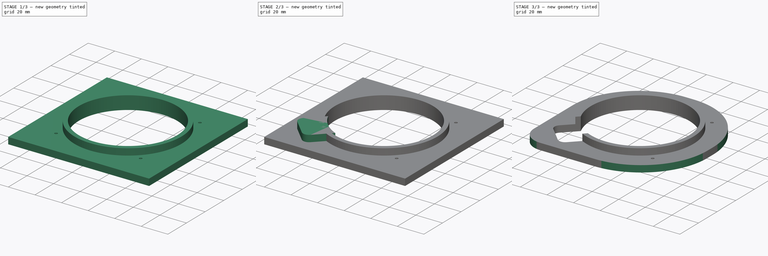
[diagram: build sequence overview — one tinted view per stage of 3, left to right]
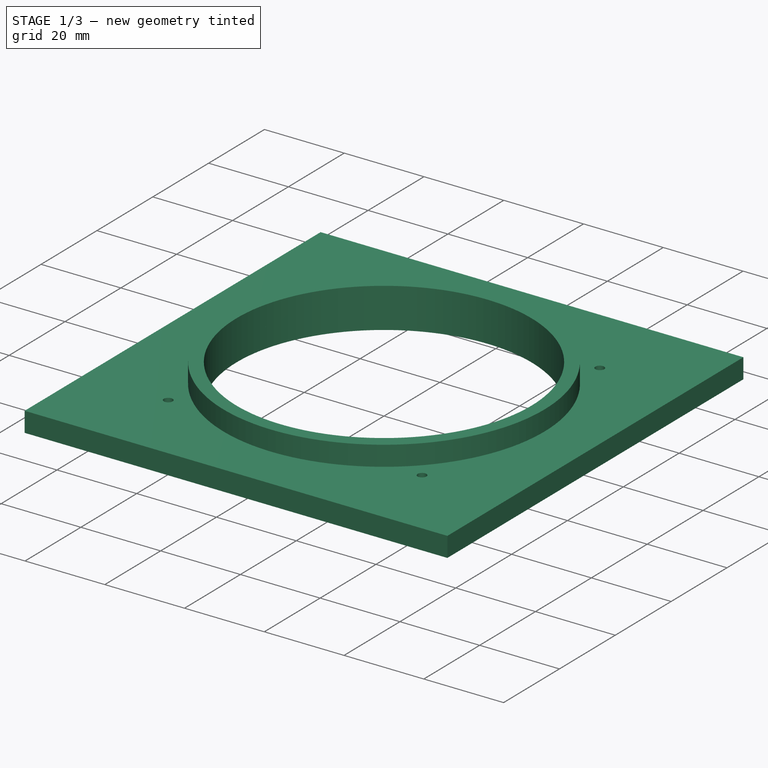
[diagram: stage 1 of 3 — iso view after this stage's code; geometry added in this stage tinted green]
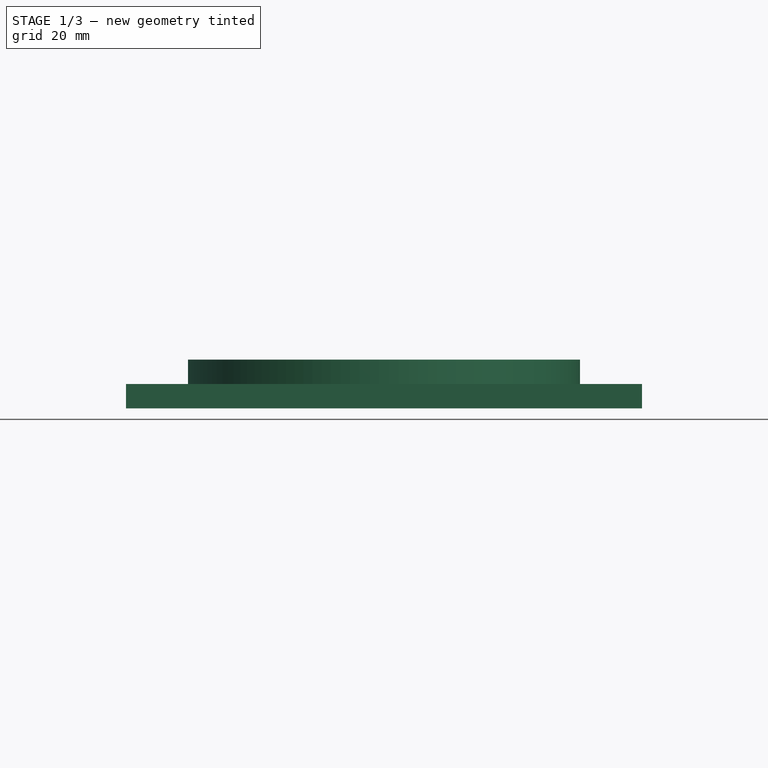
[diagram: stage 1 of 3 — front view after this stage's code; geometry added in this stage tinted green]
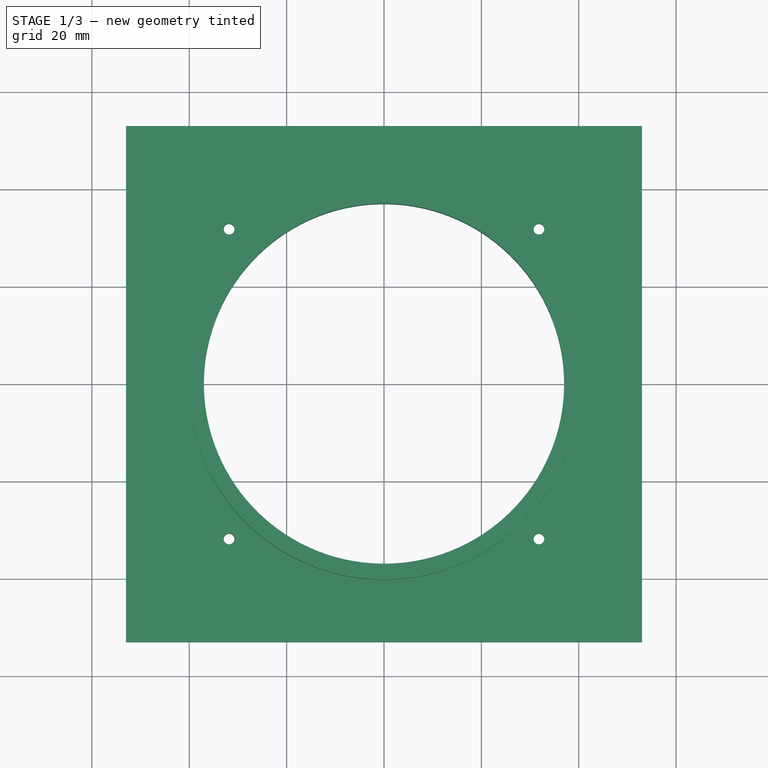
[diagram: stage 1 of 3 — top view after this stage's code; geometry added in this stage tinted green]
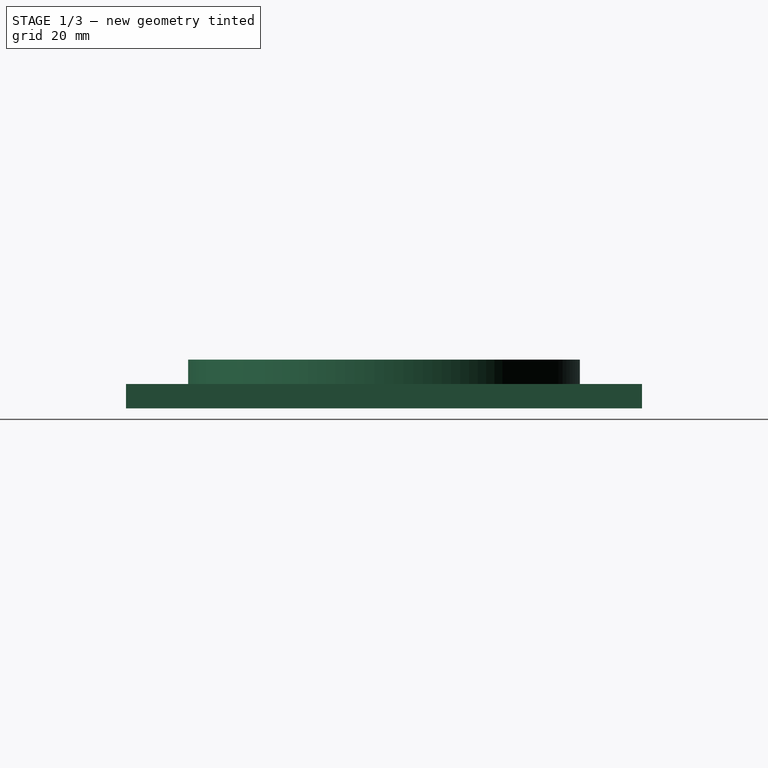
[diagram: stage 1 of 3 — right view after this stage's code; geometry added in this stage tinted green]
FCSTD DOCUMENT  (FreeCAD 0.16R6706 (Git))
Label: bezel_large_router_guide
License: All rights reserved
LicenseURL: http://en.wikipedia.org/wiki/All_rights_reserved
objects: Sketcher::SketchObject×3, PartDesign::Pad×3, Part::MultiFuse×1, Part::Cut×1, Part::Fillet×1
note: 12 computed .brp shape members not serialized (recipe doc carries the construction recipe); baked Part::Feature solids carry a one-line shape summary decoded from their .brp

FEATURE [Sketcher::SketchObject] Sketch  label="Sketch (base)"
  expr: Constraints[32] = 2.2 / 2
  sketch-geometry (15):
    g0: LineSegment StartX=-53 StartY=53 StartZ=0 EndX=-53 EndY=-53 EndZ=0
    g1: LineSegment StartX=-53 StartY=-53 StartZ=0 EndX=53 EndY=-53 EndZ=0
    g2: LineSegment StartX=53 StartY=-53 StartZ=0 EndX=53 EndY=53 EndZ=0
    g3: LineSegment StartX=53 StartY=53 StartZ=0 EndX=-53 EndY=53 EndZ=0
    g4: Circle [constr] CenterX=0 CenterY=0 CenterZ=0 NormalX=0 NormalY=0 NormalZ=1 Radius=74.9533
    g5: LineSegment [constr] StartX=0 StartY=0 StartZ=0 EndX=-31.8198 EndY=31.8198 EndZ=0
    g6: LineSegment [constr] StartX=0 StartY=0 StartZ=0 EndX=31.8198 EndY=31.8198 EndZ=0
    g7: LineSegment [constr] StartX=0 StartY=0 StartZ=0 EndX=31.8198 EndY=-31.8198 EndZ=0
    g8: LineSegment [constr] StartX=0 StartY=0 StartZ=0 EndX=-31.8198 EndY=-31.8198 EndZ=0
    g9: Circle CenterX=-31.8198 CenterY=31.8198 CenterZ=0 NormalX=0 NormalY=0 NormalZ=1 Radius=1.1
    g10: Circle CenterX=31.8198 CenterY=31.8198 CenterZ=0 NormalX=0 NormalY=0 NormalZ=1 Radius=1.1
    g11: Circle CenterX=31.8198 CenterY=-31.8198 CenterZ=0 NormalX=0 NormalY=0 NormalZ=1 Radius=1.1
    g12: Circle CenterX=-31.8198 CenterY=-31.8198 CenterZ=0 NormalX=0 NormalY=0 NormalZ=1 Radius=1.1
    g13: Circle [constr] CenterX=0 CenterY=0 CenterZ=0 NormalX=0 NormalY=0 NormalZ=1 Radius=53
    g14: Circle CenterX=0 CenterY=0 CenterZ=0 NormalX=0 NormalY=0 NormalZ=1 Radius=37
  constraints (38):
    c: Coincident(g0,g1)
    c: Coincident(g1,g2)
    c: Coincident(g2,g3)
    c: Coincident(g3,g0)
    c: Equal(g0,g1)
    c: Equal(g0,g2)
    c: Equal(g0,g3)
    c: PointOnObject(g0,g4)
    c: PointOnObject(g1,g4)
    c: PointOnObject(g2,g4)
    c: PointOnObject(g3,g4)
    c: Coincident(g4,g-1)
    c: Horizontal(g3)
    c: Coincident(g5,g-1)
    c: Distance(g5) = 45
    c: Angle(g-2,g5) = 0.785398
    c: Coincident(g6,g-1)
    c: Coincident(g7,g-1)
    c: Coincident(g8,g-1)
    c: Angle(g6,g-2) = 0.785398
    c: Parallel(g8,g6)
    c: Parallel(g5,g7)
    c: Equal(g5,g6)
    c: Equal(g6,g7)
    c: Equal(g7,g8)
    c: Coincident(g9,g5)
    c: Coincident(g10,g6)
    c: Coincident(g11,g7)
    c: Coincident(g12,g8)
    c: Equal(g9,g12)
    c: Equal(g12,g11)
    c: Equal(g11,g10)
    c: Radius(g9) = 1.1
    c: Coincident(g13,g-1)
    c: Radius(g13) = 53
    c: Tangent(g0,g13)
    c: Coincident(g14,g-1)
    c: Radius(g14) = 37
FEATURE [PartDesign::Pad] Pad  label="Pad (base)"
  Length = 5
  Length2 = 100
  Sketch = -> Sketch
  Type = 0
FEATURE [Sketcher::SketchObject] Sketch001  label="Sketch (ring)"
  sketch-geometry (2):
    g0: Circle CenterX=0 CenterY=0 CenterZ=0 NormalX=0 NormalY=0 NormalZ=1 Radius=40.25
    g1: Circle CenterX=0 CenterY=0 CenterZ=0 NormalX=0 NormalY=0 NormalZ=1 Radius=37
  constraints (4):
    c: Coincident(g0,g-1)
    c: Radius(g0) = 40.25
    c: Coincident(g1,g-1)
    c: Radius(g1) = 37
FEATURE [PartDesign::Pad] Pad005  label="Pad (ring)"
  Length = 10
  Length2 = 100
  Sketch = -> Sketch001
  Type = 0
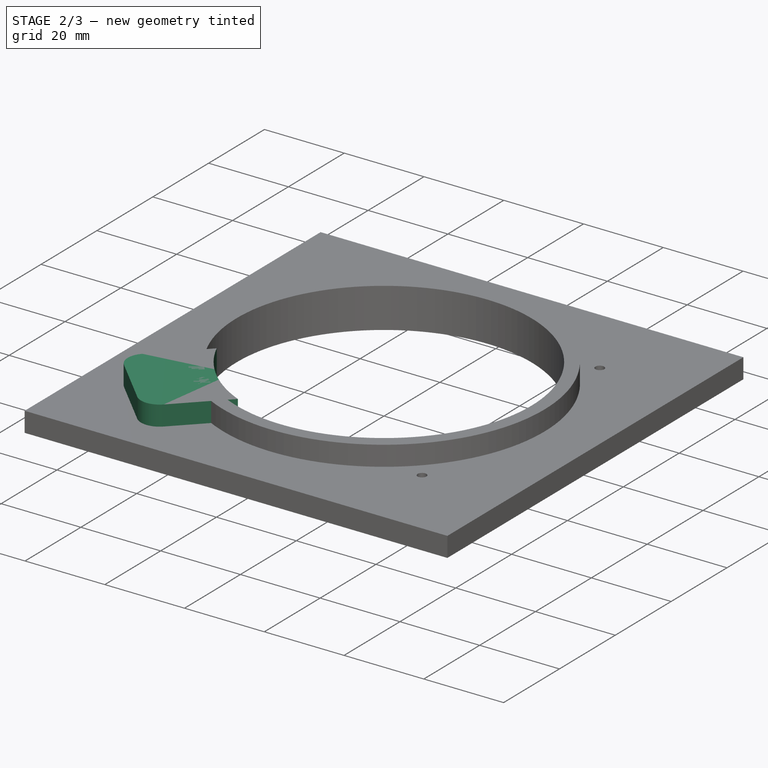
[diagram: stage 2 of 3 — iso view after this stage's code; geometry added in this stage tinted green]
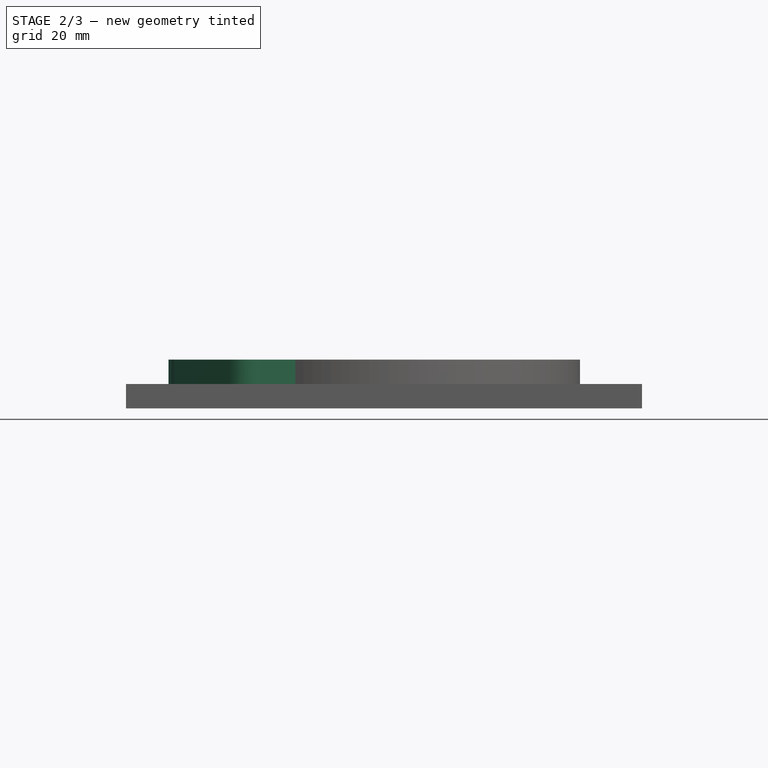
[diagram: stage 2 of 3 — front view after this stage's code; geometry added in this stage tinted green]
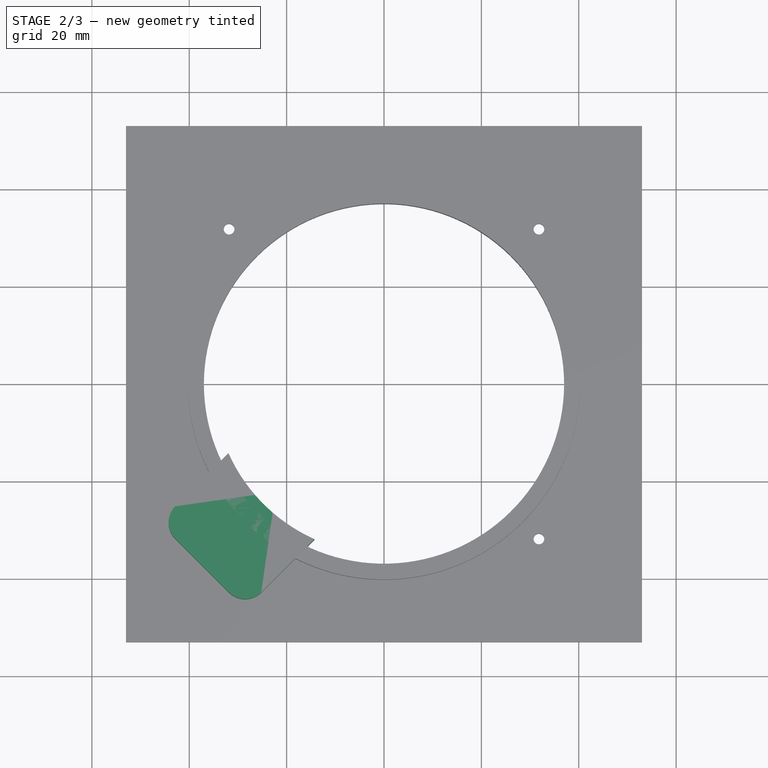
[diagram: stage 2 of 3 — top view after this stage's code; geometry added in this stage tinted green]
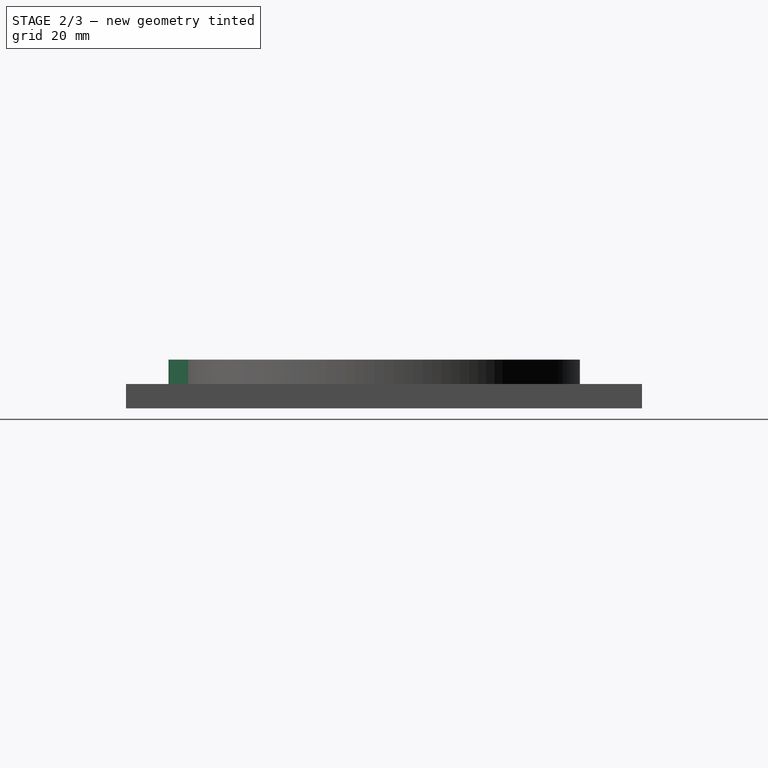
[diagram: stage 2 of 3 — right view after this stage's code; geometry added in this stage tinted green]
FEATURE [Sketcher::SketchObject] Sketch006  label="Sketch (encoder hole)"
  expr: Constraints[16] = 9.35 / 2
  sketch-geometry (8):
    g0: ArcOfCircle CenterX=0 CenterY=0 CenterZ=0 NormalX=0 NormalY=0 NormalZ=1 Radius=35 StartAngle=3.56178 EndAngle=4.2922
    g1: LineSegment [constr] StartX=0 StartY=0 StartZ=0 EndX=-24.7487 EndY=-24.7487 EndZ=0
    g2: LineSegment StartX=-31.9554 StartY=-14.2777 StartZ=0 EndX=-42.9007 EndY=-25.223 EndZ=0
    g3: LineSegment StartX=-14.2777 StartY=-31.9554 StartZ=0 EndX=-25.223 EndY=-42.9007 EndZ=0
    g4: LineSegment StartX=-42.9007 StartY=-31.8344 StartZ=0 EndX=-31.8344 EndY=-42.9007 EndZ=0
    g5: ArcOfCircle CenterX=-39.5949 CenterY=-28.5287 CenterZ=0 NormalX=0 NormalY=0 NormalZ=1 Radius=4.675 StartAngle=2.35619 EndAngle=3.92699
    g6: ArcOfCircle CenterX=-28.5287 CenterY=-39.5949 CenterZ=0 NormalX=0 NormalY=0 NormalZ=1 Radius=4.675 StartAngle=3.92699 EndAngle=5.49779
    g7: LineSegment StartX=-42.3629 StartY=-24.6852 StartZ=0 EndX=-24.6852 EndY=-42.3629 EndZ=0
  constraints (21):
    c: Coincident(g0,g-1)
    c: Coincident(g1,g-1)
    c: PointOnObject(g1,g0)
    c: Symmetric(g0,g0,g1)
    c: Coincident(g3,g0)
    c: Coincident(g2,g0)
    c: Parallel(g2,g3)
    c: Equal(g2,g3)
    c: Perpendicular(g4,g2)
    c: Angle(g-2,g1) = 2.35619
    c: Distance(g1) = 35
    c: Tangent(g2,g5) = -1.5708
    c: Tangent(g4,g5) = -1.5708
    c: Tangent(g3,g6) = 1.5708
    c: Tangent(g4,g6) = -1.5708
    c: Perpendicular(g1,g4)
    c: Radius(g5) = 4.675
    c: PointOnObject(g7,g2)
    c: PointOnObject(g7,g3)
    c: Perpendicular(g2,g7)
    c: Distance(g7) = 25
FEATURE [PartDesign::Pad] Pad004  label="Pad (encoder hole)"
  Length = 10
  Length2 = 100
  Sketch = -> Sketch006
  Type = 0
FEATURE [Part::MultiFuse] Fusion  label="Fusion (base+ring)"
  Shapes = -> [Pad,Pad005]
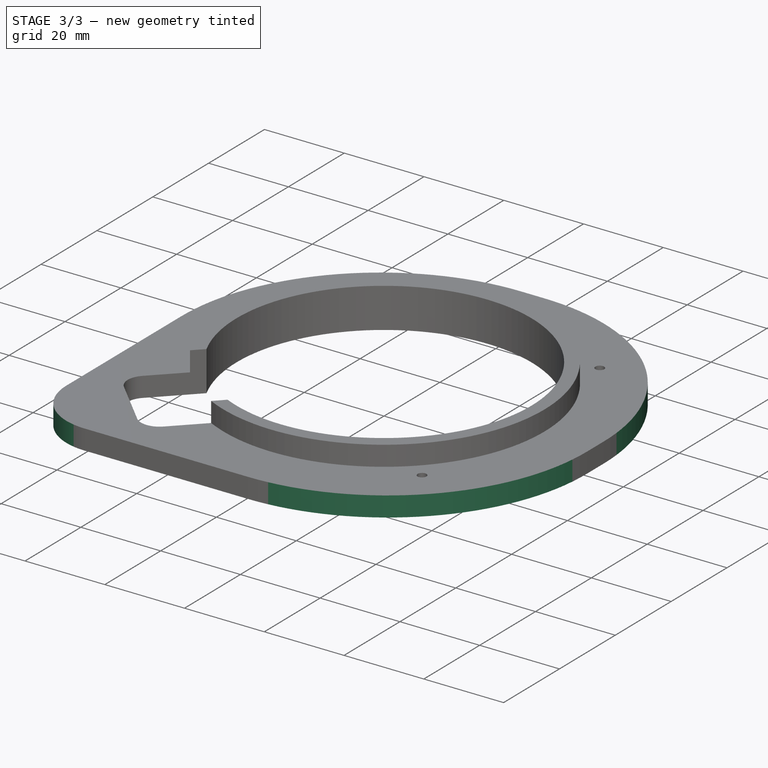
[diagram: stage 3 of 3 — iso view after this stage's code; geometry added in this stage tinted green]
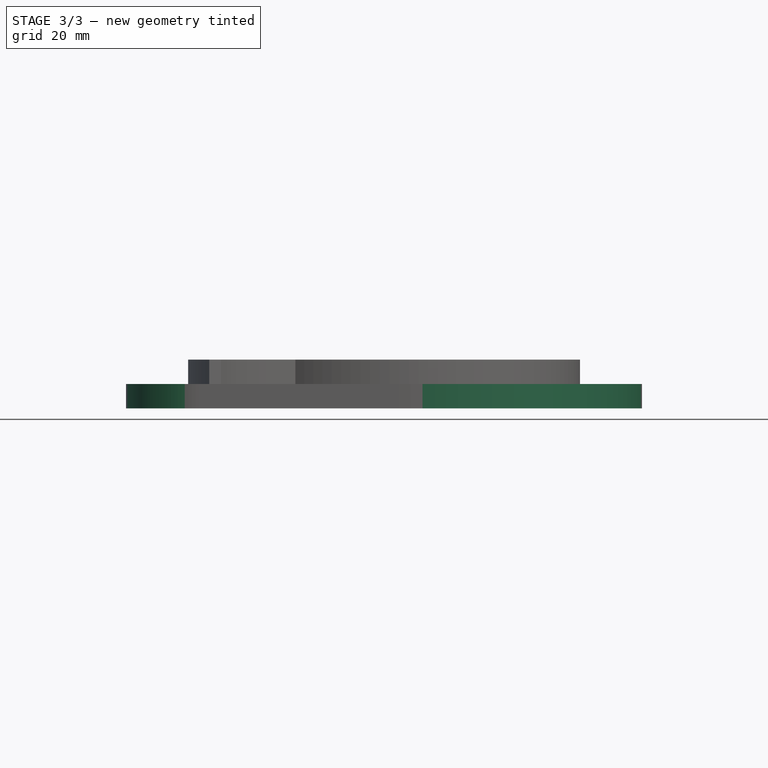
[diagram: stage 3 of 3 — front view after this stage's code; geometry added in this stage tinted green]
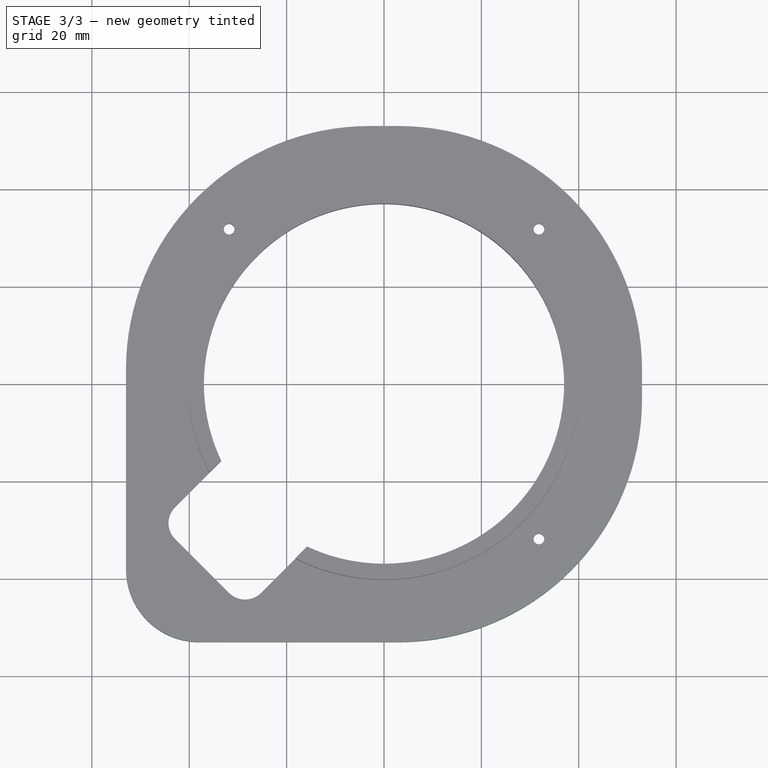
[diagram: stage 3 of 3 — top view after this stage's code; geometry added in this stage tinted green]
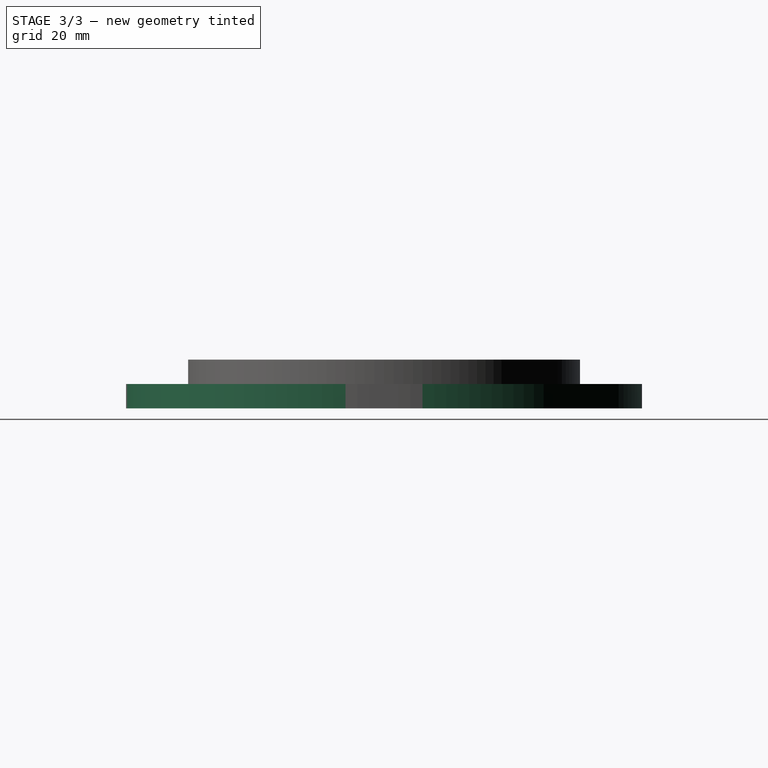
[diagram: stage 3 of 3 — right view after this stage's code; geometry added in this stage tinted green]
FEATURE [Part::Cut] Cut  label="Cut (encoder)"
  Base = -> Fusion
  Tool = -> Pad004
FEATURE [Part::Fillet] Fillet  label="Fillet (remove material)"
  Base = -> Cut
  Edges = 4 edges: [Edge1 r=50,Edge2 r=15,Edge5 r=50,Edge8 r=50]
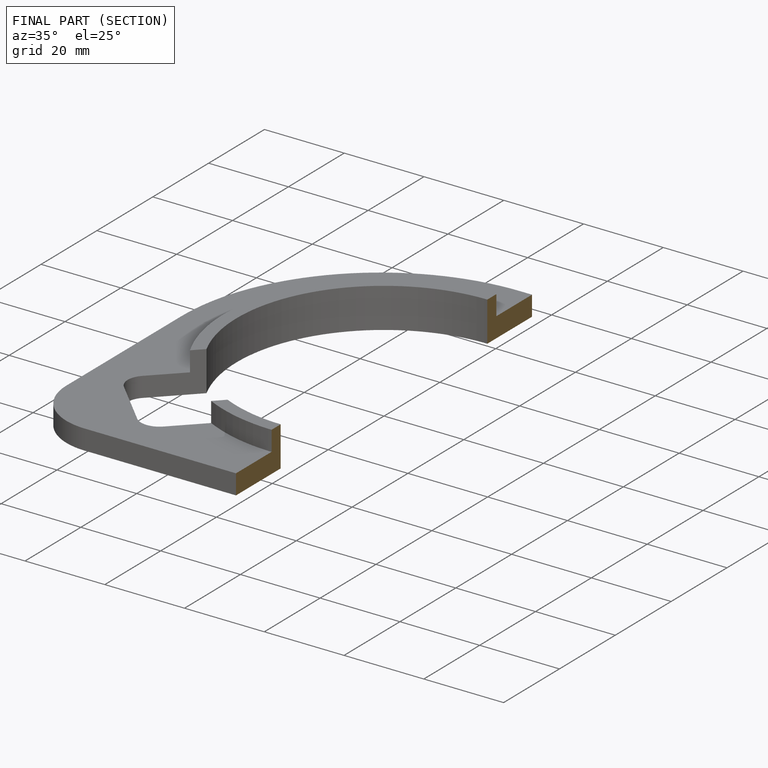
[diagram: finished part — half-section view (interior)]
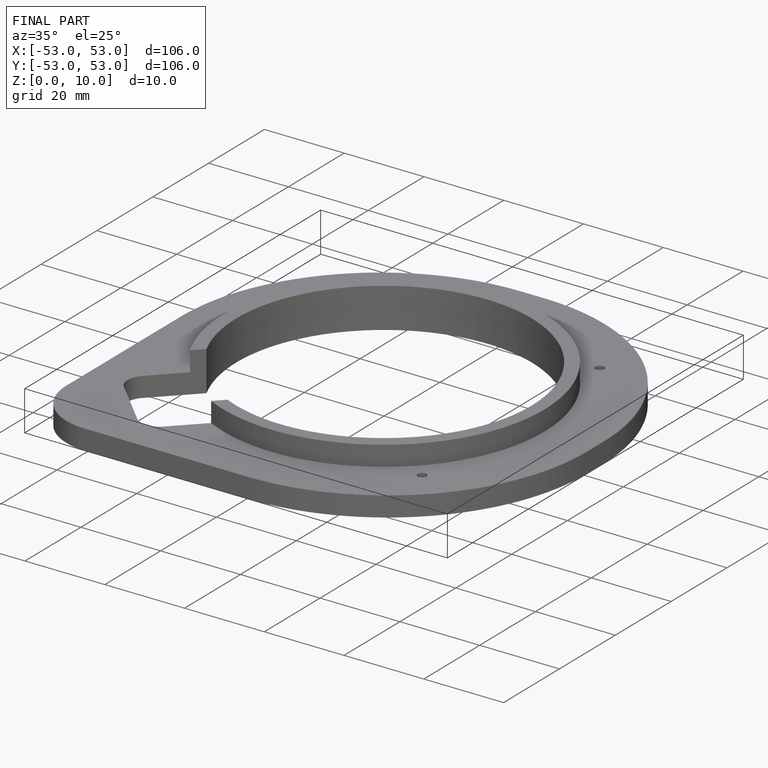
[diagram: finished part — iso view with bounding-box wireframe]
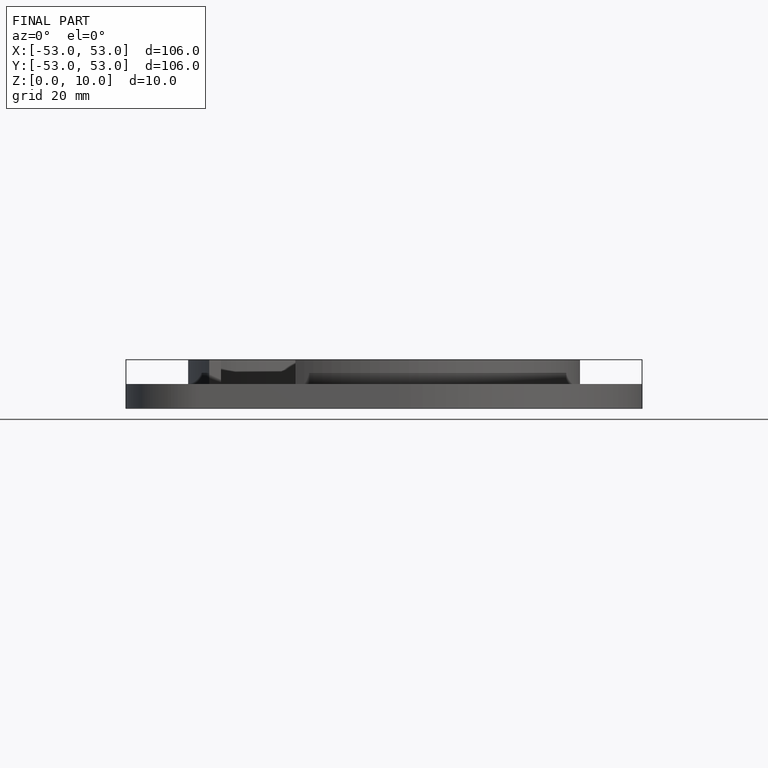
[diagram: finished part — front view with bounding-box wireframe]
